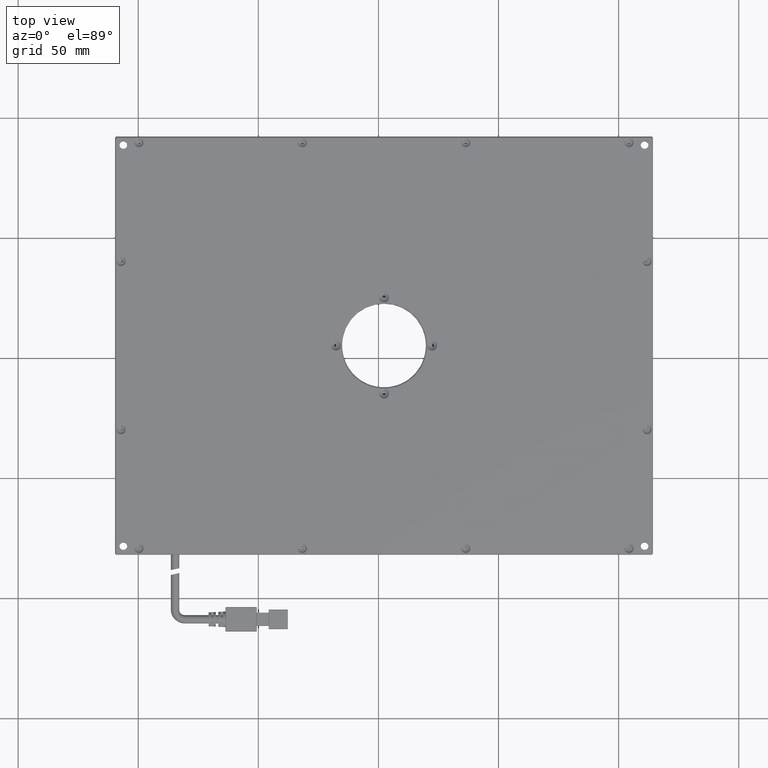
[diagram: clean part render]
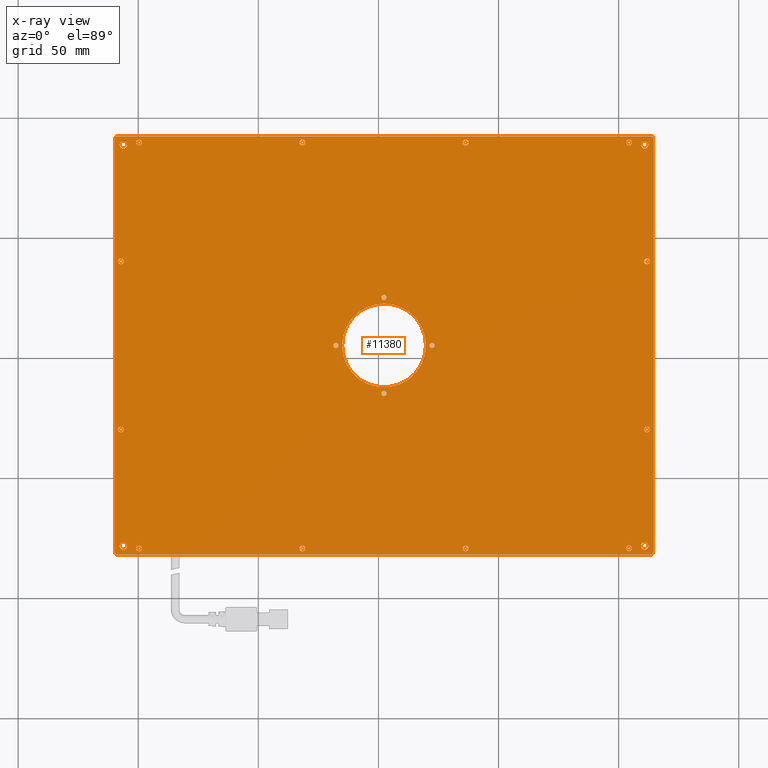
[diagram: x-ray — body ghosted, one internal face saturated and labeled with its STEP entity id]
A machine part, top view, then the same camera in x-ray: the body is ghosted and one INTERNAL B-rep face — a face not visible from any outside direction — is saturated and labeled: STEP entity #11380.
In plain terms, the highlighted planar face has unit normal (0, 0, -1).
Its self-contained STEP definition (entity closure, byte-faithful):
#69 = VERTEX_POINT ( 'NONE', #49295 ) ;
#147 = VERTEX_POINT ( 'NONE', #35935 ) ;
#184 = CARTESIAN_POINT ( 'NONE',  ( 104.3229746835443200, 89.69253164556961600, 3.750000000000000000 ) ) ;
#351 = DIRECTION ( 'NONE',  ( 1.000000000000000000, 0.0000000000000000000, 0.0000000000000000000 ) ) ;
#453 = EDGE_CURVE ( 'NONE', #43717, #19152, #18141, .T. ) ;
#471 = VERTEX_POINT ( 'NONE', #12145 ) ;
#492 = CARTESIAN_POINT ( 'NONE',  ( 1.222974683544324300, -14.80746835443041600, 3.750000000000000000 ) ) ;
#528 = CARTESIAN_POINT ( 'NONE',  ( 2.322974683544323700, -81.80746835443041200, 3.750000000000000000 ) ) ;
#546 = CARTESIAN_POINT ( 'NONE',  ( 19.82297468354437000, 5.192531645569614400, 3.750000000000000000 ) ) ;
#807 = DIRECTION ( 'NONE',  ( -0.0000000000000000000, -0.0000000000000000000, 1.000000000000000000 ) ) ;
#848 = CARTESIAN_POINT ( 'NONE',  ( 2.322974683544323700, 5.192531645569598500, 3.750000000000000000 ) ) ;
#928 = DIRECTION ( 'NONE',  ( -0.0000000000000000000, -0.0000000000000000000, 1.000000000000000000 ) ) ;
#1025 = AXIS2_PLACEMENT_3D ( 'NONE', #3193, #45606, #14791 ) ;
#1092 = ORIENTED_EDGE ( 'NONE', *, *, #9939, .T. ) ;
#1115 = EDGE_LOOP ( 'NONE', ( #17012, #20949 ) ) ;
#1518 = CARTESIAN_POINT ( 'NONE',  ( 2.322974683544323700, -14.80746835443041600, 3.750000000000000000 ) ) ;
#1659 = ORIENTED_EDGE ( 'NONE', *, *, #19388, .T. ) ;
#1712 = AXIS2_PLACEMENT_3D ( 'NONE', #16714, #13021, #27626 ) ;
#1903 = CARTESIAN_POINT ( 'NONE',  ( 103.1229746835443400, -79.30746835443037000, 3.750000000000000000 ) ) ;
#1922 = VERTEX_POINT ( 'NONE', #43012 ) ;
#2020 = VERTEX_POINT ( 'NONE', #33558 ) ;
#2044 = VERTEX_POINT ( 'NONE', #29465 ) ;
#2162 = ORIENTED_EDGE ( 'NONE', *, *, #20855, .T. ) ;
#2269 = EDGE_CURVE ( 'NONE', #30837, #37544, #46700, .T. ) ;
#2660 = AXIS2_PLACEMENT_3D ( 'NONE', #24731, #39390, #12636 ) ;
#2703 = CARTESIAN_POINT ( 'NONE',  ( -105.9770253164556500, -29.80746835443040500, 3.750000000000000000 ) ) ;
#3117 = FACE_OUTER_BOUND ( 'NONE', #43297, .T. ) ;
#3147 = VERTEX_POINT ( 'NONE', #45051 ) ;
#3193 = CARTESIAN_POINT ( 'NONE',  ( -31.67702531645569400, -79.30746835443038400, 3.750000000000000000 ) ) ;
#3323 = AXIS2_PLACEMENT_3D ( 'NONE', #17742, #44693, #29334 ) ;
#3425 = ORIENTED_EDGE ( 'NONE', *, *, #453, .T. ) ;
#3586 = EDGE_LOOP ( 'NONE', ( #39699, #28389 ) ) ;
#3702 = VECTOR ( 'NONE', #8111, 1000.000000000000000 ) ;
#3726 = EDGE_CURVE ( 'NONE', #5691, #24163, #14438, .T. ) ;
#3733 = LINE ( 'NONE', #24946, #39879 ) ;
#3799 = ORIENTED_EDGE ( 'NONE', *, *, #44925, .T. ) ;
#3851 = EDGE_CURVE ( 'NONE', #19152, #21690, #18017, .T. ) ;
#3884 = CIRCLE ( 'NONE', #29923, 1.099999999999999400 ) ;
#3966 = ORIENTED_EDGE ( 'NONE', *, *, #17832, .T. ) ;
#4015 = CARTESIAN_POINT ( 'NONE',  ( 3.422974683544323300, 25.19253164556961300, 3.750000000000000000 ) ) ;
#4330 = FACE_BOUND ( 'NONE', #17108, .T. ) ;
#4334 = EDGE_CURVE ( 'NONE', #2044, #23144, #33020, .T. ) ;
#4381 = CIRCLE ( 'NONE', #31114, 1.100000000000000300 ) ;
#4490 = CIRCLE ( 'NONE', #34323, 1.199999999999992600 ) ;
#4491 = VERTEX_POINT ( 'NONE', #23718 ) ;
#4526 = LINE ( 'NONE', #35081, #44286 ) ;
#4528 = AXIS2_PLACEMENT_3D ( 'NONE', #48354, #37780, #22422 ) ;
#4561 = AXIS2_PLACEMENT_3D ( 'NONE', #49177, #33703, #17866 ) ;
#4728 = EDGE_CURVE ( 'NONE', #19956, #22705, #30537, .T. ) ;
#4762 = CARTESIAN_POINT ( 'NONE',  ( -109.6770253164556700, 5.192531645569598500, 3.750000000000000000 ) ) ;
#4845 = DIRECTION ( 'NONE',  ( -0.0000000000000000000, -0.0000000000000000000, 1.000000000000000000 ) ) ;
#5076 = ORIENTED_EDGE ( 'NONE', *, *, #4334, .T. ) ;
#5368 = CIRCLE ( 'NONE', #33976, 1.100000000000000300 ) ;
#5392 = AXIS2_PLACEMENT_3D ( 'NONE', #39301, #928, #20599 ) ;
#5422 = ORIENTED_EDGE ( 'NONE', *, *, #2269, .T. ) ;
#5470 = VECTOR ( 'NONE', #17005, 1000.000000000000000 ) ;
#5514 = FACE_BOUND ( 'NONE', #31147, .T. ) ;
#5691 = VERTEX_POINT ( 'NONE', #37552 ) ;
#6181 = ORIENTED_EDGE ( 'NONE', *, *, #4728, .T. ) ;
#6239 = CIRCLE ( 'NONE', #32594, 1.199999999999992600 ) ;
#6360 = DIRECTION ( 'NONE',  ( 1.000000000000000000, 0.0000000000000000000, 0.0000000000000000000 ) ) ;
#6389 = CIRCLE ( 'NONE', #28246, 1.199999999999992600 ) ;
#6457 = CARTESIAN_POINT ( 'NONE',  ( 103.1229746835443300, 89.69253164556961600, 3.750000000000000000 ) ) ;
#6592 = LINE ( 'NONE', #41368, #39164 ) ;
#6733 = FACE_BOUND ( 'NONE', #1115, .T. ) ;
#6960 = DIRECTION ( 'NONE',  ( -0.0000000000000000000, -0.0000000000000000000, 1.000000000000000000 ) ) ;
#6973 = DIRECTION ( 'NONE',  ( 1.000000000000000000, 0.0000000000000000000, 0.0000000000000000000 ) ) ;
#6976 = EDGE_CURVE ( 'NONE', #2020, #30283, #13166, .T. ) ;
#7092 = DIRECTION ( 'NONE',  ( 1.000000000000000000, 0.0000000000000000000, 0.0000000000000000000 ) ) ;
#7199 = VECTOR ( 'NONE', #49498, 1000.000000000000000 ) ;
#7718 = ORIENTED_EDGE ( 'NONE', *, *, #13119, .T. ) ;
#7746 = AXIS2_PLACEMENT_3D ( 'NONE', #42710, #19622, #26853 ) ;
#7843 = VERTEX_POINT ( 'NONE', #1903 ) ;
#7891 = CIRCLE ( 'NONE', #46883, 17.50000000000000400 ) ;
#7990 = EDGE_CURVE ( 'NONE', #36779, #45708, #48528, .T. ) ;
#8111 = DIRECTION ( 'NONE',  ( -1.000000000000000000, 0.0000000000000000000, -0.0000000000000000000 ) ) ;
#8245 = ORIENTED_EDGE ( 'NONE', *, *, #25269, .T. ) ;
#8539 = DIRECTION ( 'NONE',  ( 1.000000000000000000, 0.0000000000000000000, 0.0000000000000000000 ) ) ;
#8564 = AXIS2_PLACEMENT_3D ( 'NONE', #42448, #35025, #42779 ) ;
#8581 = CARTESIAN_POINT ( 'NONE',  ( -100.8770253164557000, 89.69253164556958800, 3.750000000000000000 ) ) ;
#8599 = CARTESIAN_POINT ( 'NONE',  ( 36.32297468354430900, -79.30746835443038400, 3.750000000000000000 ) ) ;
#8617 = CARTESIAN_POINT ( 'NONE',  ( 22.32297468354433800, 5.192531645569809000, 3.750000000000000000 ) ) ;
#8671 = CARTESIAN_POINT ( 'NONE',  ( -107.1770253164556600, -29.80746835443040500, 3.750000000000000000 ) ) ;
#8741 = VERTEX_POINT ( 'NONE', #4015 ) ;
#8793 = ORIENTED_EDGE ( 'NONE', *, *, #19323, .T. ) ;
#8898 = DIRECTION ( 'NONE',  ( 1.000000000000000000, 0.0000000000000000000, 0.0000000000000000000 ) ) ;
#9086 = CARTESIAN_POINT ( 'NONE',  ( 2.322974683544323700, 25.19253164556961300, 3.750000000000000000 ) ) ;
#9188 = FACE_BOUND ( 'NONE', #11060, .T. ) ;
#9206 = CARTESIAN_POINT ( 'NONE',  ( -98.47702531645572300, 89.69253164556958800, 3.750000000000000000 ) ) ;
#9362 = CARTESIAN_POINT ( 'NONE',  ( 2.322974683544365400, 5.192531645569612700, 3.750000000000000000 ) ) ;
#9442 = CIRCLE ( 'NONE', #38439, 1.199999999999992600 ) ;
#9882 = CIRCLE ( 'NONE', #20252, 1.600000000000004100 ) ;
#9939 = EDGE_CURVE ( 'NONE', #22705, #19956, #6239, .T. ) ;
#10219 = DIRECTION ( 'NONE',  ( -0.0000000000000000000, -0.0000000000000000000, 1.000000000000000000 ) ) ;
#10301 = CARTESIAN_POINT ( 'NONE',  ( 2.322974683544323700, 92.19253164556960200, 3.750000000000000000 ) ) ;
#10419 = DIRECTION ( 'NONE',  ( 1.000000000000000000, 0.0000000000000000000, 0.0000000000000000000 ) ) ;
#10591 = CIRCLE ( 'NONE', #24490, 1.099999999999999400 ) ;
#10667 = EDGE_LOOP ( 'NONE', ( #14797, #41519 ) ) ;
#10724 = AXIS2_PLACEMENT_3D ( 'NONE', #49115, #30228, #38014 ) ;
#10747 = DIRECTION ( 'NONE',  ( -0.0000000000000000000, -0.0000000000000000000, 1.000000000000000000 ) ) ;
#10925 = VERTEX_POINT ( 'NONE', #40133 ) ;
#10968 = FACE_BOUND ( 'NONE', #43694, .T. ) ;
#10990 = VERTEX_POINT ( 'NONE', #47832 ) ;
#11060 = EDGE_LOOP ( 'NONE', ( #13076, #46134 ) ) ;
#11276 = DIRECTION ( 'NONE',  ( 1.000000000000000000, 0.0000000000000000000, 0.0000000000000000000 ) ) ;
#11380 = ADVANCED_FACE ( 'NONE', ( #26567, #9188, #12741, #4330, #27759, #41665, #24795, #21131, #13948, #35057, #3117, #40452, #47062, #6733, #10968, #36834, #14556, #44087, #5514, #15140, #16357, #33849 ), #19530, .T. ) ;
#11524 = DIRECTION ( 'NONE',  ( -0.0000000000000000000, -0.0000000000000000000, 1.000000000000000000 ) ) ;
#11530 = EDGE_CURVE ( 'NONE', #3147, #41792, #22311, .T. ) ;
#11976 = DIRECTION ( 'NONE',  ( -0.0000000000000000000, -0.0000000000000000000, 1.000000000000000000 ) ) ;
#12145 = CARTESIAN_POINT ( 'NONE',  ( -18.77702531645569200, 5.192531645569528300, 3.750000000000000000 ) ) ;
#12503 = DIRECTION ( 'NONE',  ( -0.0000000000000000000, -0.0000000000000000000, 1.000000000000000000 ) ) ;
#12624 = EDGE_CURVE ( 'NONE', #1922, #3147, #45634, .T. ) ;
#12627 = ORIENTED_EDGE ( 'NONE', *, *, #27357, .T. ) ;
#12636 = DIRECTION ( 'NONE',  ( 1.000000000000000000, 0.0000000000000000000, 0.0000000000000000000 ) ) ;
#12741 = FACE_BOUND ( 'NONE', #22754, .T. ) ;
#12814 = DIRECTION ( 'NONE',  ( -0.0000000000000000000, -0.0000000000000000000, 1.000000000000000000 ) ) ;
#13021 = DIRECTION ( 'NONE',  ( -0.0000000000000000000, -0.0000000000000000000, 1.000000000000000000 ) ) ;
#13076 = ORIENTED_EDGE ( 'NONE', *, *, #44231, .T. ) ;
#13119 = EDGE_CURVE ( 'NONE', #43577, #32133, #40668, .T. ) ;
#13166 = CIRCLE ( 'NONE', #37241, 1.199999999999992600 ) ;
#13226 = EDGE_CURVE ( 'NONE', #33877, #30666, #20179, .T. ) ;
#13323 = CARTESIAN_POINT ( 'NONE',  ( 21.22297468354433600, 5.192531645569809000, 3.750000000000000000 ) ) ;
#13330 = ORIENTED_EDGE ( 'NONE', *, *, #37538, .T. ) ;
#13345 = DIRECTION ( 'NONE',  ( 0.7071067811864985000, 0.7071067811865965300, 0.0000000000000000000 ) ) ;
#13478 = VERTEX_POINT ( 'NONE', #42473 ) ;
#13635 = AXIS2_PLACEMENT_3D ( 'NONE', #1518, #43643, #43476 ) ;
#13700 = DIRECTION ( 'NONE',  ( -1.000000000000000000, 0.0000000000000000000, 0.0000000000000000000 ) ) ;
#13764 = VERTEX_POINT ( 'NONE', #13323 ) ;
#13948 = FACE_BOUND ( 'NONE', #22260, .T. ) ;
#13953 = CARTESIAN_POINT ( 'NONE',  ( -17.67702531645569100, 5.192531645569528300, 3.750000000000000000 ) ) ;
#13963 = AXIS2_PLACEMENT_3D ( 'NONE', #15557, #26796, #31170 ) ;
#13987 = CARTESIAN_POINT ( 'NONE',  ( 37.52297468354429100, 89.69253164556960200, 3.750000000000000000 ) ) ;
#14136 = EDGE_LOOP ( 'NONE', ( #19954, #32521 ) ) ;
#14154 = EDGE_LOOP ( 'NONE', ( #14719, #5076 ) ) ;
#14232 = EDGE_LOOP ( 'NONE', ( #40802, #3799 ) ) ;
#14293 = CARTESIAN_POINT ( 'NONE',  ( -15.17702531645563900, 5.192531645569612700, 3.750000000000000000 ) ) ;
#14428 = ORIENTED_EDGE ( 'NONE', *, *, #39170, .T. ) ;
#14436 = AXIS2_PLACEMENT_3D ( 'NONE', #44435, #17639, #21302 ) ;
#14438 = CIRCLE ( 'NONE', #4561, 1.600000000000004100 ) ;
#14556 = FACE_BOUND ( 'NONE', #32424, .T. ) ;
#14627 = DIRECTION ( 'NONE',  ( -0.0000000000000000000, -0.0000000000000000000, 1.000000000000000000 ) ) ;
#14639 = EDGE_CURVE ( 'NONE', #21328, #37153, #41893, .T. ) ;
#14719 = ORIENTED_EDGE ( 'NONE', *, *, #46397, .T. ) ;
#14791 = DIRECTION ( 'NONE',  ( 1.000000000000000000, 0.0000000000000000000, 0.0000000000000000000 ) ) ;
#14797 = ORIENTED_EDGE ( 'NONE', *, *, #46070, .T. ) ;
#15077 = CIRCLE ( 'NONE', #49435, 1.199999999999992600 ) ;
#15140 = FACE_BOUND ( 'NONE', #42476, .T. ) ;
#15150 = CARTESIAN_POINT ( 'NONE',  ( 110.6229746835443000, -29.80746835443040500, 3.750000000000000000 ) ) ;
#15557 = CARTESIAN_POINT ( 'NONE',  ( -99.67702531645571200, 89.69253164556958800, 3.750000000000000000 ) ) ;
#15727 = CIRCLE ( 'NONE', #28444, 1.199999999999992600 ) ;
#15798 = EDGE_LOOP ( 'NONE', ( #28894, #18982 ) ) ;
#15816 = DIRECTION ( 'NONE',  ( -0.0000000000000000000, -0.0000000000000000000, 1.000000000000000000 ) ) ;
#15848 = EDGE_CURVE ( 'NONE', #42429, #13478, #36290, .T. ) ;
#15888 = VERTEX_POINT ( 'NONE', #34016 ) ;
#16037 = EDGE_CURVE ( 'NONE', #8741, #35820, #16343, .T. ) ;
#16049 = ORIENTED_EDGE ( 'NONE', *, *, #34282, .T. ) ;
#16343 = CIRCLE ( 'NONE', #38514, 1.099999999999999400 ) ;
#16357 = FACE_BOUND ( 'NONE', #36483, .T. ) ;
#16447 = CARTESIAN_POINT ( 'NONE',  ( 105.5229746835443100, 89.69253164556961600, 3.750000000000000000 ) ) ;
#16604 = VERTEX_POINT ( 'NONE', #16907 ) ;
#16678 = DIRECTION ( 'NONE',  ( 1.000000000000000000, 0.0000000000000000000, 0.0000000000000000000 ) ) ;
#16687 = AXIS2_PLACEMENT_3D ( 'NONE', #9362, #36921, #13700 ) ;
#16714 = CARTESIAN_POINT ( 'NONE',  ( -31.67702531645570500, 89.69253164556960200, 3.750000000000000000 ) ) ;
#16775 = VERTEX_POINT ( 'NONE', #32556 ) ;
#16907 = CARTESIAN_POINT ( 'NONE',  ( -108.3770253164556400, -29.80746835443040500, 3.750000000000000000 ) ) ;
#16942 = EDGE_CURVE ( 'NONE', #471, #23885, #18855, .T. ) ;
#17005 = DIRECTION ( 'NONE',  ( 0.7071067811865672200, -0.7071067811865279200, 0.0000000000000000000 ) ) ;
#17012 = ORIENTED_EDGE ( 'NONE', *, *, #22513, .T. ) ;
#17026 = CARTESIAN_POINT ( 'NONE',  ( -105.9770253164556700, 40.19253164556960200, 3.750000000000000000 ) ) ;
#17108 = EDGE_LOOP ( 'NONE', ( #46631, #41170 ) ) ;
#17290 = DIRECTION ( 'NONE',  ( -0.0000000000000000000, -0.0000000000000000000, 1.000000000000000000 ) ) ;
#17519 = ORIENTED_EDGE ( 'NONE', *, *, #37210, .T. ) ;
#17639 = DIRECTION ( 'NONE',  ( -0.0000000000000000000, -0.0000000000000000000, 1.000000000000000000 ) ) ;
#17742 = CARTESIAN_POINT ( 'NONE',  ( 111.8229746835443200, 40.19253164556960200, 3.750000000000000000 ) ) ;
#17800 = DIRECTION ( 'NONE',  ( 1.000000000000000000, 0.0000000000000000000, 0.0000000000000000000 ) ) ;
#17832 = EDGE_CURVE ( 'NONE', #25547, #43717, #6592, .T. ) ;
#17866 = DIRECTION ( 'NONE',  ( 1.000000000000000000, 0.0000000000000000000, 0.0000000000000000000 ) ) ;
#17868 = DIRECTION ( 'NONE',  ( -0.0000000000000000000, -0.0000000000000000000, 1.000000000000000000 ) ) ;
#17873 = LINE ( 'NONE', #4762, #37163 ) ;
#18017 = LINE ( 'NONE', #37739, #7199 ) ;
#18119 = AXIS2_PLACEMENT_3D ( 'NONE', #22183, #14627, #26222 ) ;
#18141 = LINE ( 'NONE', #528, #3702 ) ;
#18418 = CARTESIAN_POINT ( 'NONE',  ( -109.1770253164556400, -81.80746835443042600, 3.749999999999999600 ) ) ;
#18433 = EDGE_CURVE ( 'NONE', #26577, #16604, #27593, .T. ) ;
#18452 = CARTESIAN_POINT ( 'NONE',  ( -106.1770253164556400, -78.30746835443039800, 3.750000000000000000 ) ) ;
#18855 = CIRCLE ( 'NONE', #28516, 1.100000000000000300 ) ;
#18982 = ORIENTED_EDGE ( 'NONE', *, *, #42797, .T. ) ;
#19152 = VERTEX_POINT ( 'NONE', #18418 ) ;
#19205 = CIRCLE ( 'NONE', #1712, 1.199999999999992600 ) ;
#19323 = EDGE_CURVE ( 'NONE', #35820, #8741, #10591, .T. ) ;
#19388 = EDGE_CURVE ( 'NONE', #41792, #25547, #4526, .T. ) ;
#19530 = PLANE ( 'NONE',  #31020 ) ;
#19622 = DIRECTION ( 'NONE',  ( -0.0000000000000000000, -0.0000000000000000000, 1.000000000000000000 ) ) ;
#19824 = CARTESIAN_POINT ( 'NONE',  ( 111.8229746835443000, -29.80746835443040500, 3.750000000000000000 ) ) ;
#19954 = ORIENTED_EDGE ( 'NONE', *, *, #35470, .T. ) ;
#19956 = VERTEX_POINT ( 'NONE', #15150 ) ;
#20179 = CIRCLE ( 'NONE', #16687, 17.50000000000000400 ) ;
#20252 = AXIS2_PLACEMENT_3D ( 'NONE', #18452, #30193, #37641 ) ;
#20599 = DIRECTION ( 'NONE',  ( 1.000000000000000000, 0.0000000000000000000, 0.0000000000000000000 ) ) ;
#20692 = VERTEX_POINT ( 'NONE', #9206 ) ;
#20717 = CARTESIAN_POINT ( 'NONE',  ( -108.3770253164556600, 40.19253164556960200, 3.750000000000000000 ) ) ;
#20812 = CARTESIAN_POINT ( 'NONE',  ( 110.8229746835443000, 88.69253164556958800, 3.750000000000000000 ) ) ;
#20855 = EDGE_CURVE ( 'NONE', #24163, #5691, #26680, .T. ) ;
#20893 = EDGE_CURVE ( 'NONE', #13764, #42531, #30890, .T. ) ;
#20934 = EDGE_CURVE ( 'NONE', #147, #26794, #26050, .T. ) ;
#20949 = ORIENTED_EDGE ( 'NONE', *, *, #39353, .T. ) ;
#21131 = FACE_BOUND ( 'NONE', #15798, .T. ) ;
#21287 = CARTESIAN_POINT ( 'NONE',  ( -31.67702531645570500, 89.69253164556960200, 3.750000000000000000 ) ) ;
#21301 = CARTESIAN_POINT ( 'NONE',  ( 113.0229746835442900, -29.80746835443040500, 3.750000000000000000 ) ) ;
#21302 = DIRECTION ( 'NONE',  ( 1.000000000000000000, 0.0000000000000000000, 0.0000000000000000000 ) ) ;
#21328 = VERTEX_POINT ( 'NONE', #16447 ) ;
#21472 = DIRECTION ( 'NONE',  ( -0.0000000000000000000, -0.0000000000000000000, 1.000000000000000000 ) ) ;
#21685 = EDGE_CURVE ( 'NONE', #30666, #33877, #7891, .T. ) ;
#21688 = CARTESIAN_POINT ( 'NONE',  ( 104.3229746835443300, -79.30746835443037000, 3.750000000000000000 ) ) ;
#21690 = VERTEX_POINT ( 'NONE', #22110 ) ;
#22090 = CARTESIAN_POINT ( 'NONE',  ( 111.8229746835443200, 40.19253164556960200, 3.750000000000000000 ) ) ;
#22110 = CARTESIAN_POINT ( 'NONE',  ( -109.6770253164556700, -81.30746835443041200, 3.749999999999999600 ) ) ;
#22183 = CARTESIAN_POINT ( 'NONE',  ( -106.1770253164556400, -78.30746835443039800, 3.750000000000000000 ) ) ;
#22260 = EDGE_LOOP ( 'NONE', ( #24589, #2162 ) ) ;
#22303 = ORIENTED_EDGE ( 'NONE', *, *, #11530, .T. ) ;
#22311 = LINE ( 'NONE', #35874, #5470 ) ;
#22337 = AXIS2_PLACEMENT_3D ( 'NONE', #49332, #49005, #7092 ) ;
#22422 = DIRECTION ( 'NONE',  ( 1.000000000000000000, 0.0000000000000000000, 0.0000000000000000000 ) ) ;
#22513 = EDGE_CURVE ( 'NONE', #25979, #7843, #44283, .T. ) ;
#22633 = CIRCLE ( 'NONE', #10724, 1.199999999999992600 ) ;
#22705 = VERTEX_POINT ( 'NONE', #21301 ) ;
#22754 = EDGE_LOOP ( 'NONE', ( #14428, #43805 ) ) ;
#22966 = CARTESIAN_POINT ( 'NONE',  ( 23.42297468354433900, 5.192531645569809000, 3.750000000000000000 ) ) ;
#23044 = EDGE_LOOP ( 'NONE', ( #24549, #47295 ) ) ;
#23144 = VERTEX_POINT ( 'NONE', #35978 ) ;
#23186 = CARTESIAN_POINT ( 'NONE',  ( -32.87702531645570000, 89.69253164556960200, 3.750000000000000000 ) ) ;
#23229 = CARTESIAN_POINT ( 'NONE',  ( -100.8770253164556900, -79.30746835443039800, 3.750000000000000000 ) ) ;
#23254 = ORIENTED_EDGE ( 'NONE', *, *, #14639, .T. ) ;
#23355 = CARTESIAN_POINT ( 'NONE',  ( 35.12297468354430700, 89.69253164556960200, 3.750000000000000000 ) ) ;
#23455 = DIRECTION ( 'NONE',  ( 1.000000000000000000, 0.0000000000000000000, 0.0000000000000000000 ) ) ;
#23718 = CARTESIAN_POINT ( 'NONE',  ( 109.2229746835443100, 88.69253164556958800, 3.750000000000000000 ) ) ;
#23720 = CARTESIAN_POINT ( 'NONE',  ( -106.1770253164556600, 88.69253164556958800, 3.750000000000000000 ) ) ;
#23885 = VERTEX_POINT ( 'NONE', #42339 ) ;
#24065 = CARTESIAN_POINT ( 'NONE',  ( 113.8229746835443400, -81.80746835443041200, 3.749999999999999600 ) ) ;
#24163 = VERTEX_POINT ( 'NONE', #24469 ) ;
#24284 = DIRECTION ( 'NONE',  ( 1.000000000000000000, 0.0000000000000000000, 0.0000000000000000000 ) ) ;
#24469 = CARTESIAN_POINT ( 'NONE',  ( 109.2229746835442900, -78.30746835443039800, 3.750000000000000000 ) ) ;
#24490 = AXIS2_PLACEMENT_3D ( 'NONE', #34580, #11524, #42325 ) ;
#24549 = ORIENTED_EDGE ( 'NONE', *, *, #13226, .T. ) ;
#24589 = ORIENTED_EDGE ( 'NONE', *, *, #3726, .T. ) ;
#24731 = CARTESIAN_POINT ( 'NONE',  ( 110.8229746835442900, -78.30746835443039800, 3.750000000000000000 ) ) ;
#24769 = EDGE_CURVE ( 'NONE', #32133, #43577, #9442, .T. ) ;
#24795 = FACE_BOUND ( 'NONE', #10667, .T. ) ;
#24851 = EDGE_CURVE ( 'NONE', #13478, #42429, #22633, .T. ) ;
#24946 = CARTESIAN_POINT ( 'NONE',  ( -109.6770253164556800, 91.69253164556951700, 3.750000000000000000 ) ) ;
#24961 = EDGE_LOOP ( 'NONE', ( #17519, #8245 ) ) ;
#25029 = VERTEX_POINT ( 'NONE', #23186 ) ;
#25269 = EDGE_CURVE ( 'NONE', #16775, #69, #49626, .T. ) ;
#25407 = AXIS2_PLACEMENT_3D ( 'NONE', #23720, #4845, #46586 ) ;
#25547 = VERTEX_POINT ( 'NONE', #46508 ) ;
#25746 = DIRECTION ( 'NONE',  ( 1.000000000000000000, -0.0000000000000000000, 0.0000000000000000000 ) ) ;
#25835 = DIRECTION ( 'NONE',  ( -1.000000000000000000, 0.0000000000000000000, 0.0000000000000000000 ) ) ;
#25977 = CARTESIAN_POINT ( 'NONE',  ( 22.32297468354433800, 5.192531645569809000, 3.750000000000000000 ) ) ;
#25979 = VERTEX_POINT ( 'NONE', #34492 ) ;
#26050 = CIRCLE ( 'NONE', #13635, 1.099999999999999400 ) ;
#26102 = CARTESIAN_POINT ( 'NONE',  ( 36.32297468354429500, 89.69253164556960200, 3.750000000000000000 ) ) ;
#26222 = DIRECTION ( 'NONE',  ( 1.000000000000000000, 0.0000000000000000000, 0.0000000000000000000 ) ) ;
#26371 = AXIS2_PLACEMENT_3D ( 'NONE', #47305, #12814, #16678 ) ;
#26462 = CARTESIAN_POINT ( 'NONE',  ( 36.32297468354430900, -79.30746835443038400, 3.750000000000000000 ) ) ;
#26567 = FACE_BOUND ( 'NONE', #48082, .T. ) ;
#26577 = VERTEX_POINT ( 'NONE', #2703 ) ;
#26680 = CIRCLE ( 'NONE', #2660, 1.600000000000004100 ) ;
#26794 = VERTEX_POINT ( 'NONE', #492 ) ;
#26796 = DIRECTION ( 'NONE',  ( -0.0000000000000000000, -0.0000000000000000000, 1.000000000000000000 ) ) ;
#26853 = DIRECTION ( 'NONE',  ( 1.000000000000000000, 0.0000000000000000000, 0.0000000000000000000 ) ) ;
#27099 = EDGE_CURVE ( 'NONE', #32284, #4491, #42129, .T. ) ;
#27184 = AXIS2_PLACEMENT_3D ( 'NONE', #19824, #10747, #8898 ) ;
#27357 = EDGE_CURVE ( 'NONE', #37544, #30837, #40869, .T. ) ;
#27484 = AXIS2_PLACEMENT_3D ( 'NONE', #8617, #40081, #35545 ) ;
#27593 = CIRCLE ( 'NONE', #14436, 1.199999999999992600 ) ;
#27626 = DIRECTION ( 'NONE',  ( 1.000000000000000000, 0.0000000000000000000, 0.0000000000000000000 ) ) ;
#27627 = DIRECTION ( 'NONE',  ( -0.0000000000000000000, -1.000000000000000000, -0.0000000000000000000 ) ) ;
#27759 = FACE_BOUND ( 'NONE', #14232, .T. ) ;
#28127 = DIRECTION ( 'NONE',  ( -0.0000000000000000000, -0.0000000000000000000, 1.000000000000000000 ) ) ;
#28246 = AXIS2_PLACEMENT_3D ( 'NONE', #184, #11976, #351 ) ;
#28328 = DIRECTION ( 'NONE',  ( -0.0000000000000000000, -0.0000000000000000000, 1.000000000000000000 ) ) ;
#28389 = ORIENTED_EDGE ( 'NONE', *, *, #48310, .T. ) ;
#28444 = AXIS2_PLACEMENT_3D ( 'NONE', #21688, #33525, #48645 ) ;
#28516 = AXIS2_PLACEMENT_3D ( 'NONE', #45313, #41620, #49346 ) ;
#28894 = ORIENTED_EDGE ( 'NONE', *, *, #27099, .T. ) ;
#29326 = DIRECTION ( 'NONE',  ( 1.000000000000000000, 0.0000000000000000000, 0.0000000000000000000 ) ) ;
#29334 = DIRECTION ( 'NONE',  ( 1.000000000000000000, 0.0000000000000000000, 0.0000000000000000000 ) ) ;
#29389 = CARTESIAN_POINT ( 'NONE',  ( -99.67702531645569800, -79.30746835443039800, 3.750000000000000000 ) ) ;
#29465 = CARTESIAN_POINT ( 'NONE',  ( -107.7770253164556500, -78.30746835443039800, 3.750000000000000000 ) ) ;
#29923 = AXIS2_PLACEMENT_3D ( 'NONE', #31831, #12503, #24284 ) ;
#30080 = ORIENTED_EDGE ( 'NONE', *, *, #18433, .T. ) ;
#30193 = DIRECTION ( 'NONE',  ( -0.0000000000000000000, -0.0000000000000000000, 1.000000000000000000 ) ) ;
#30228 = DIRECTION ( 'NONE',  ( -0.0000000000000000000, -0.0000000000000000000, 1.000000000000000000 ) ) ;
#30283 = VERTEX_POINT ( 'NONE', #36929 ) ;
#30415 = CIRCLE ( 'NONE', #25407, 1.600000000000004100 ) ;
#30537 = CIRCLE ( 'NONE', #27184, 1.199999999999992600 ) ;
#30666 = VERTEX_POINT ( 'NONE', #546 ) ;
#30837 = VERTEX_POINT ( 'NONE', #17026 ) ;
#30890 = CIRCLE ( 'NONE', #27484, 1.100000000000000300 ) ;
#31020 = AXIS2_PLACEMENT_3D ( 'NONE', #848, #31130, #42629 ) ;
#31114 = AXIS2_PLACEMENT_3D ( 'NONE', #25977, #10219, #6973 ) ;
#31130 = DIRECTION ( 'NONE',  ( 0.0000000000000000000, 0.0000000000000000000, -1.000000000000000000 ) ) ;
#31147 = EDGE_LOOP ( 'NONE', ( #49509, #8793 ) ) ;
#31170 = DIRECTION ( 'NONE',  ( 1.000000000000000000, 0.0000000000000000000, 0.0000000000000000000 ) ) ;
#31655 = AXIS2_PLACEMENT_3D ( 'NONE', #8671, #28127, #39430 ) ;
#31758 = DIRECTION ( 'NONE',  ( 1.000000000000000000, 0.0000000000000000000, 0.0000000000000000000 ) ) ;
#31831 = CARTESIAN_POINT ( 'NONE',  ( 2.322974683544323700, -14.80746835443041600, 3.750000000000000000 ) ) ;
#31849 = CARTESIAN_POINT ( 'NONE',  ( 1.222974683544324300, 25.19253164556961300, 3.750000000000000000 ) ) ;
#32044 = CARTESIAN_POINT ( 'NONE',  ( 114.3229746835443400, 91.69253164556960200, 3.749999999999999600 ) ) ;
#32063 = CARTESIAN_POINT ( 'NONE',  ( -99.67702531645571200, 89.69253164556958800, 3.750000000000000000 ) ) ;
#32123 = AXIS2_PLACEMENT_3D ( 'NONE', #32063, #28328, #35296 ) ;
#32133 = VERTEX_POINT ( 'NONE', #41063 ) ;
#32284 = VERTEX_POINT ( 'NONE', #33823 ) ;
#32424 = EDGE_LOOP ( 'NONE', ( #1092, #6181 ) ) ;
#32521 = ORIENTED_EDGE ( 'NONE', *, *, #20893, .T. ) ;
#32556 = CARTESIAN_POINT ( 'NONE',  ( 110.6229746835443100, 40.19253164556960200, 3.750000000000000000 ) ) ;
#32594 = AXIS2_PLACEMENT_3D ( 'NONE', #34336, #37697, #11276 ) ;
#32727 = CARTESIAN_POINT ( 'NONE',  ( 36.32297468354429500, 89.69253164556960200, 3.750000000000000000 ) ) ;
#33020 = CIRCLE ( 'NONE', #18119, 1.600000000000004100 ) ;
#33525 = DIRECTION ( 'NONE',  ( -0.0000000000000000000, -0.0000000000000000000, 1.000000000000000000 ) ) ;
#33558 = CARTESIAN_POINT ( 'NONE',  ( 37.52297468354430500, -79.30746835443038400, 3.750000000000000000 ) ) ;
#33703 = DIRECTION ( 'NONE',  ( -0.0000000000000000000, -0.0000000000000000000, 1.000000000000000000 ) ) ;
#33823 = CARTESIAN_POINT ( 'NONE',  ( 112.4229746835443100, 88.69253164556958800, 3.750000000000000000 ) ) ;
#33849 = FACE_BOUND ( 'NONE', #14136, .T. ) ;
#33877 = VERTEX_POINT ( 'NONE', #14293 ) ;
#33976 = AXIS2_PLACEMENT_3D ( 'NONE', #13953, #44585, #17800 ) ;
#34016 = CARTESIAN_POINT ( 'NONE',  ( -109.6770253164556700, 91.69253164556953100, 3.749999999999999600 ) ) ;
#34178 = AXIS2_PLACEMENT_3D ( 'NONE', #22090, #6960, #29326 ) ;
#34282 = EDGE_CURVE ( 'NONE', #21690, #15888, #17873, .T. ) ;
#34293 = CIRCLE ( 'NONE', #13963, 1.199999999999992600 ) ;
#34323 = AXIS2_PLACEMENT_3D ( 'NONE', #32727, #47377, #36268 ) ;
#34336 = CARTESIAN_POINT ( 'NONE',  ( 111.8229746835443000, -29.80746835443040500, 3.750000000000000000 ) ) ;
#34455 = EDGE_CURVE ( 'NONE', #10990, #48949, #46774, .T. ) ;
#34492 = CARTESIAN_POINT ( 'NONE',  ( 105.5229746835443200, -79.30746835443037000, 3.750000000000000000 ) ) ;
#34580 = CARTESIAN_POINT ( 'NONE',  ( 2.322974683544323700, 25.19253164556961300, 3.750000000000000000 ) ) ;
#34725 = ORIENTED_EDGE ( 'NONE', *, *, #12624, .T. ) ;
#35025 = DIRECTION ( 'NONE',  ( -0.0000000000000000000, -0.0000000000000000000, 1.000000000000000000 ) ) ;
#35057 = FACE_BOUND ( 'NONE', #14154, .T. ) ;
#35081 = CARTESIAN_POINT ( 'NONE',  ( 114.3229746835443400, 5.192531645569598500, 3.750000000000000000 ) ) ;
#35118 = ORIENTED_EDGE ( 'NONE', *, *, #48569, .T. ) ;
#35296 = DIRECTION ( 'NONE',  ( 1.000000000000000000, 0.0000000000000000000, 0.0000000000000000000 ) ) ;
#35307 = DIRECTION ( 'NONE',  ( -0.0000000000000000000, -0.0000000000000000000, 1.000000000000000000 ) ) ;
#35470 = EDGE_CURVE ( 'NONE', #42531, #13764, #4381, .T. ) ;
#35545 = DIRECTION ( 'NONE',  ( 1.000000000000000000, 0.0000000000000000000, 0.0000000000000000000 ) ) ;
#35750 = DIRECTION ( 'NONE',  ( 0.0000000000000000000, 1.000000000000000000, 0.0000000000000000000 ) ) ;
#35820 = VERTEX_POINT ( 'NONE', #31849 ) ;
#35874 = CARTESIAN_POINT ( 'NONE',  ( 113.8229746835442900, 92.19253164556963000, 3.750000000000000000 ) ) ;
#35935 = CARTESIAN_POINT ( 'NONE',  ( 3.422974683544323300, -14.80746835443041600, 3.750000000000000000 ) ) ;
#35968 = ORIENTED_EDGE ( 'NONE', *, *, #20934, .T. ) ;
#35978 = CARTESIAN_POINT ( 'NONE',  ( -104.5770253164556500, -78.30746835443039800, 3.750000000000000000 ) ) ;
#36268 = DIRECTION ( 'NONE',  ( 1.000000000000000000, 0.0000000000000000000, 0.0000000000000000000 ) ) ;
#36290 = CIRCLE ( 'NONE', #1025, 1.199999999999992600 ) ;
#36483 = EDGE_LOOP ( 'NONE', ( #35968, #13330 ) ) ;
#36779 = VERTEX_POINT ( 'NONE', #23355 ) ;
#36834 = FACE_BOUND ( 'NONE', #43154, .T. ) ;
#36921 = DIRECTION ( 'NONE',  ( 0.0000000000000000000, 0.0000000000000000000, 1.000000000000000000 ) ) ;
#36929 = CARTESIAN_POINT ( 'NONE',  ( 35.12297468354432100, -79.30746835443038400, 3.750000000000000000 ) ) ;
#37153 = VERTEX_POINT ( 'NONE', #6457 ) ;
#37163 = VECTOR ( 'NONE', #35750, 1000.000000000000000 ) ;
#37210 = EDGE_CURVE ( 'NONE', #69, #16775, #38282, .T. ) ;
#37241 = AXIS2_PLACEMENT_3D ( 'NONE', #26462, #38108, #23455 ) ;
#37538 = EDGE_CURVE ( 'NONE', #26794, #147, #3884, .T. ) ;
#37544 = VERTEX_POINT ( 'NONE', #20717 ) ;
#37552 = CARTESIAN_POINT ( 'NONE',  ( 112.4229746835443000, -78.30746835443039800, 3.750000000000000000 ) ) ;
#37641 = DIRECTION ( 'NONE',  ( 1.000000000000000000, 0.0000000000000000000, 0.0000000000000000000 ) ) ;
#37697 = DIRECTION ( 'NONE',  ( -0.0000000000000000000, -0.0000000000000000000, 1.000000000000000000 ) ) ;
#37739 = CARTESIAN_POINT ( 'NONE',  ( -109.1770253164556400, -81.80746835443041200, 3.750000000000000000 ) ) ;
#37780 = DIRECTION ( 'NONE',  ( -0.0000000000000000000, -0.0000000000000000000, 1.000000000000000000 ) ) ;
#38014 = DIRECTION ( 'NONE',  ( 1.000000000000000000, 0.0000000000000000000, 0.0000000000000000000 ) ) ;
#38108 = DIRECTION ( 'NONE',  ( -0.0000000000000000000, -0.0000000000000000000, 1.000000000000000000 ) ) ;
#38282 = CIRCLE ( 'NONE', #34178, 1.199999999999992600 ) ;
#38439 = AXIS2_PLACEMENT_3D ( 'NONE', #29389, #21472, #6360 ) ;
#38446 = EDGE_CURVE ( 'NONE', #25029, #10925, #48899, .T. ) ;
#38514 = AXIS2_PLACEMENT_3D ( 'NONE', #9086, #807, #31758 ) ;
#38995 = CARTESIAN_POINT ( 'NONE',  ( -107.1770253164556700, 40.19253164556960200, 3.750000000000000000 ) ) ;
#39097 = EDGE_CURVE ( 'NONE', #20692, #43553, #34293, .T. ) ;
#39164 = VECTOR ( 'NONE', #48916, 1000.000000000000000 ) ;
#39170 = EDGE_CURVE ( 'NONE', #10925, #25029, #19205, .T. ) ;
#39301 = CARTESIAN_POINT ( 'NONE',  ( -99.67702531645569800, -79.30746835443039800, 3.750000000000000000 ) ) ;
#39323 = CARTESIAN_POINT ( 'NONE',  ( -104.5770253164556600, 88.69253164556958800, 3.750000000000000000 ) ) ;
#39353 = EDGE_CURVE ( 'NONE', #7843, #25979, #15727, .T. ) ;
#39390 = DIRECTION ( 'NONE',  ( -0.0000000000000000000, -0.0000000000000000000, 1.000000000000000000 ) ) ;
#39430 = DIRECTION ( 'NONE',  ( 1.000000000000000000, 0.0000000000000000000, 0.0000000000000000000 ) ) ;
#39467 = ORIENTED_EDGE ( 'NONE', *, *, #16942, .T. ) ;
#39598 = VECTOR ( 'NONE', #25746, 1000.000000000000000 ) ;
#39699 = ORIENTED_EDGE ( 'NONE', *, *, #6976, .T. ) ;
#39879 = VECTOR ( 'NONE', #13345, 1000.000000000000000 ) ;
#40081 = DIRECTION ( 'NONE',  ( -0.0000000000000000000, -0.0000000000000000000, 1.000000000000000000 ) ) ;
#40133 = CARTESIAN_POINT ( 'NONE',  ( -30.47702531645571300, 89.69253164556960200, 3.750000000000000000 ) ) ;
#40452 = FACE_BOUND ( 'NONE', #23044, .T. ) ;
#40494 = EDGE_CURVE ( 'NONE', #37153, #21328, #6389, .T. ) ;
#40668 = CIRCLE ( 'NONE', #5392, 1.199999999999992600 ) ;
#40802 = ORIENTED_EDGE ( 'NONE', *, *, #39097, .T. ) ;
#40869 = CIRCLE ( 'NONE', #48562, 1.199999999999992600 ) ;
#40993 = CIRCLE ( 'NONE', #4528, 1.600000000000004100 ) ;
#41063 = CARTESIAN_POINT ( 'NONE',  ( -98.47702531645570900, -79.30746835443039800, 3.750000000000000000 ) ) ;
#41170 = ORIENTED_EDGE ( 'NONE', *, *, #15848, .T. ) ;
#41368 = CARTESIAN_POINT ( 'NONE',  ( 114.3229746835443400, -81.30746835443044100, 3.750000000000000000 ) ) ;
#41519 = ORIENTED_EDGE ( 'NONE', *, *, #34455, .T. ) ;
#41559 = ORIENTED_EDGE ( 'NONE', *, *, #48032, .T. ) ;
#41620 = DIRECTION ( 'NONE',  ( -0.0000000000000000000, -0.0000000000000000000, 1.000000000000000000 ) ) ;
#41665 = FACE_BOUND ( 'NONE', #47135, .T. ) ;
#41792 = VERTEX_POINT ( 'NONE', #32044 ) ;
#41893 = CIRCLE ( 'NONE', #7746, 1.199999999999992600 ) ;
#42129 = CIRCLE ( 'NONE', #49835, 1.600000000000004100 ) ;
#42139 = CIRCLE ( 'NONE', #32123, 1.199999999999992600 ) ;
#42325 = DIRECTION ( 'NONE',  ( 1.000000000000000000, 0.0000000000000000000, 0.0000000000000000000 ) ) ;
#42339 = CARTESIAN_POINT ( 'NONE',  ( -16.57702531645568900, 5.192531645569528300, 3.750000000000000000 ) ) ;
#42343 = CIRCLE ( 'NONE', #31655, 1.199999999999992600 ) ;
#42429 = VERTEX_POINT ( 'NONE', #42538 ) ;
#42448 = CARTESIAN_POINT ( 'NONE',  ( 104.3229746835443300, -79.30746835443037000, 3.750000000000000000 ) ) ;
#42473 = CARTESIAN_POINT ( 'NONE',  ( -30.47702531645569800, -79.30746835443038400, 3.750000000000000000 ) ) ;
#42476 = EDGE_LOOP ( 'NONE', ( #35118, #39467 ) ) ;
#42531 = VERTEX_POINT ( 'NONE', #22966 ) ;
#42538 = CARTESIAN_POINT ( 'NONE',  ( -32.87702531645568600, -79.30746835443038400, 3.750000000000000000 ) ) ;
#42629 = DIRECTION ( 'NONE',  ( -1.000000000000000000, 0.0000000000000000000, -0.0000000000000000000 ) ) ;
#42710 = CARTESIAN_POINT ( 'NONE',  ( 104.3229746835443200, 89.69253164556961600, 3.750000000000000000 ) ) ;
#42779 = DIRECTION ( 'NONE',  ( 1.000000000000000000, 0.0000000000000000000, 0.0000000000000000000 ) ) ;
#42797 = EDGE_CURVE ( 'NONE', #4491, #32284, #40993, .T. ) ;
#43012 = CARTESIAN_POINT ( 'NONE',  ( -109.1770253164556700, 92.19253164556960200, 3.749999999999999600 ) ) ;
#43154 = EDGE_LOOP ( 'NONE', ( #5422, #12627 ) ) ;
#43297 = EDGE_LOOP ( 'NONE', ( #1659, #3966, #3425, #45883, #16049, #41559, #34725, #22303 ) ) ;
#43476 = DIRECTION ( 'NONE',  ( 1.000000000000000000, 0.0000000000000000000, 0.0000000000000000000 ) ) ;
#43553 = VERTEX_POINT ( 'NONE', #8581 ) ;
#43577 = VERTEX_POINT ( 'NONE', #23229 ) ;
#43643 = DIRECTION ( 'NONE',  ( -0.0000000000000000000, -0.0000000000000000000, 1.000000000000000000 ) ) ;
#43694 = EDGE_LOOP ( 'NONE', ( #30080, #48821 ) ) ;
#43717 = VERTEX_POINT ( 'NONE', #24065 ) ;
#43805 = ORIENTED_EDGE ( 'NONE', *, *, #38446, .T. ) ;
#44087 = FACE_BOUND ( 'NONE', #24961, .T. ) ;
#44231 = EDGE_CURVE ( 'NONE', #45708, #36779, #4490, .T. ) ;
#44283 = CIRCLE ( 'NONE', #8564, 1.199999999999992600 ) ;
#44286 = VECTOR ( 'NONE', #27627, 1000.000000000000000 ) ;
#44415 = AXIS2_PLACEMENT_3D ( 'NONE', #26102, #17868, #48665 ) ;
#44435 = CARTESIAN_POINT ( 'NONE',  ( -107.1770253164556600, -29.80746835443040500, 3.750000000000000000 ) ) ;
#44585 = DIRECTION ( 'NONE',  ( -0.0000000000000000000, -0.0000000000000000000, 1.000000000000000000 ) ) ;
#44693 = DIRECTION ( 'NONE',  ( -0.0000000000000000000, -0.0000000000000000000, 1.000000000000000000 ) ) ;
#44925 = EDGE_CURVE ( 'NONE', #43553, #20692, #42139, .T. ) ;
#45051 = CARTESIAN_POINT ( 'NONE',  ( 113.8229746835443200, 92.19253164556958800, 3.749999999999999600 ) ) ;
#45313 = CARTESIAN_POINT ( 'NONE',  ( -17.67702531645569100, 5.192531645569528300, 3.750000000000000000 ) ) ;
#45523 = DIRECTION ( 'NONE',  ( 0.0000000000000000000, 0.0000000000000000000, 1.000000000000000000 ) ) ;
#45606 = DIRECTION ( 'NONE',  ( -0.0000000000000000000, -0.0000000000000000000, 1.000000000000000000 ) ) ;
#45634 = LINE ( 'NONE', #10301, #39598 ) ;
#45708 = VERTEX_POINT ( 'NONE', #13987 ) ;
#45883 = ORIENTED_EDGE ( 'NONE', *, *, #3851, .T. ) ;
#46070 = EDGE_CURVE ( 'NONE', #48949, #10990, #30415, .T. ) ;
#46134 = ORIENTED_EDGE ( 'NONE', *, *, #7990, .T. ) ;
#46397 = EDGE_CURVE ( 'NONE', #23144, #2044, #9882, .T. ) ;
#46508 = CARTESIAN_POINT ( 'NONE',  ( 114.3229746835443400, -81.30746835443042600, 3.749999999999999600 ) ) ;
#46586 = DIRECTION ( 'NONE',  ( 1.000000000000000000, 0.0000000000000000000, 0.0000000000000000000 ) ) ;
#46631 = ORIENTED_EDGE ( 'NONE', *, *, #24851, .T. ) ;
#46700 = CIRCLE ( 'NONE', #26371, 1.199999999999992600 ) ;
#46774 = CIRCLE ( 'NONE', #22337, 1.600000000000004100 ) ;
#46883 = AXIS2_PLACEMENT_3D ( 'NONE', #49553, #45523, #25835 ) ;
#46897 = ORIENTED_EDGE ( 'NONE', *, *, #24769, .T. ) ;
#46950 = DIRECTION ( 'NONE',  ( 1.000000000000000000, 0.0000000000000000000, 0.0000000000000000000 ) ) ;
#47062 = FACE_BOUND ( 'NONE', #3586, .T. ) ;
#47135 = EDGE_LOOP ( 'NONE', ( #46897, #7718 ) ) ;
#47295 = ORIENTED_EDGE ( 'NONE', *, *, #21685, .T. ) ;
#47305 = CARTESIAN_POINT ( 'NONE',  ( -107.1770253164556700, 40.19253164556960200, 3.750000000000000000 ) ) ;
#47377 = DIRECTION ( 'NONE',  ( -0.0000000000000000000, -0.0000000000000000000, 1.000000000000000000 ) ) ;
#47832 = CARTESIAN_POINT ( 'NONE',  ( -107.7770253164556600, 88.69253164556958800, 3.750000000000000000 ) ) ;
#47953 = EDGE_CURVE ( 'NONE', #16604, #26577, #42343, .T. ) ;
#48032 = EDGE_CURVE ( 'NONE', #15888, #1922, #3733, .T. ) ;
#48070 = DIRECTION ( 'NONE',  ( 1.000000000000000000, 0.0000000000000000000, 0.0000000000000000000 ) ) ;
#48082 = EDGE_LOOP ( 'NONE', ( #23254, #48731 ) ) ;
#48232 = DIRECTION ( 'NONE',  ( -0.0000000000000000000, -0.0000000000000000000, 1.000000000000000000 ) ) ;
#48310 = EDGE_CURVE ( 'NONE', #30283, #2020, #15077, .T. ) ;
#48354 = CARTESIAN_POINT ( 'NONE',  ( 110.8229746835443000, 88.69253164556958800, 3.750000000000000000 ) ) ;
#48528 = CIRCLE ( 'NONE', #44415, 1.199999999999992600 ) ;
#48562 = AXIS2_PLACEMENT_3D ( 'NONE', #38995, #35307, #8539 ) ;
#48569 = EDGE_CURVE ( 'NONE', #23885, #471, #5368, .T. ) ;
#48645 = DIRECTION ( 'NONE',  ( 1.000000000000000000, 0.0000000000000000000, 0.0000000000000000000 ) ) ;
#48665 = DIRECTION ( 'NONE',  ( 1.000000000000000000, 0.0000000000000000000, 0.0000000000000000000 ) ) ;
#48731 = ORIENTED_EDGE ( 'NONE', *, *, #40494, .T. ) ;
#48821 = ORIENTED_EDGE ( 'NONE', *, *, #47953, .T. ) ;
#48899 = CIRCLE ( 'NONE', #49042, 1.199999999999992600 ) ;
#48916 = DIRECTION ( 'NONE',  ( -0.7071067811865671100, -0.7071067811865279200, 0.0000000000000000000 ) ) ;
#48949 = VERTEX_POINT ( 'NONE', #39323 ) ;
#49005 = DIRECTION ( 'NONE',  ( -0.0000000000000000000, -0.0000000000000000000, 1.000000000000000000 ) ) ;
#49042 = AXIS2_PLACEMENT_3D ( 'NONE', #21287, #48232, #10419 ) ;
#49115 = CARTESIAN_POINT ( 'NONE',  ( -31.67702531645569400, -79.30746835443038400, 3.750000000000000000 ) ) ;
#49177 = CARTESIAN_POINT ( 'NONE',  ( 110.8229746835442900, -78.30746835443039800, 3.750000000000000000 ) ) ;
#49295 = CARTESIAN_POINT ( 'NONE',  ( 113.0229746835443100, 40.19253164556960200, 3.750000000000000000 ) ) ;
#49332 = CARTESIAN_POINT ( 'NONE',  ( -106.1770253164556600, 88.69253164556958800, 3.750000000000000000 ) ) ;
#49346 = DIRECTION ( 'NONE',  ( 1.000000000000000000, 0.0000000000000000000, 0.0000000000000000000 ) ) ;
#49435 = AXIS2_PLACEMENT_3D ( 'NONE', #8599, #15816, #46950 ) ;
#49498 = DIRECTION ( 'NONE',  ( -0.7071067811865672200, 0.7071067811865279200, 0.0000000000000000000 ) ) ;
#49509 = ORIENTED_EDGE ( 'NONE', *, *, #16037, .T. ) ;
#49553 = CARTESIAN_POINT ( 'NONE',  ( 2.322974683544365400, 5.192531645569612700, 3.750000000000000000 ) ) ;
#49626 = CIRCLE ( 'NONE', #3323, 1.199999999999992600 ) ;
#49835 = AXIS2_PLACEMENT_3D ( 'NONE', #20812, #17290, #48070 ) ;